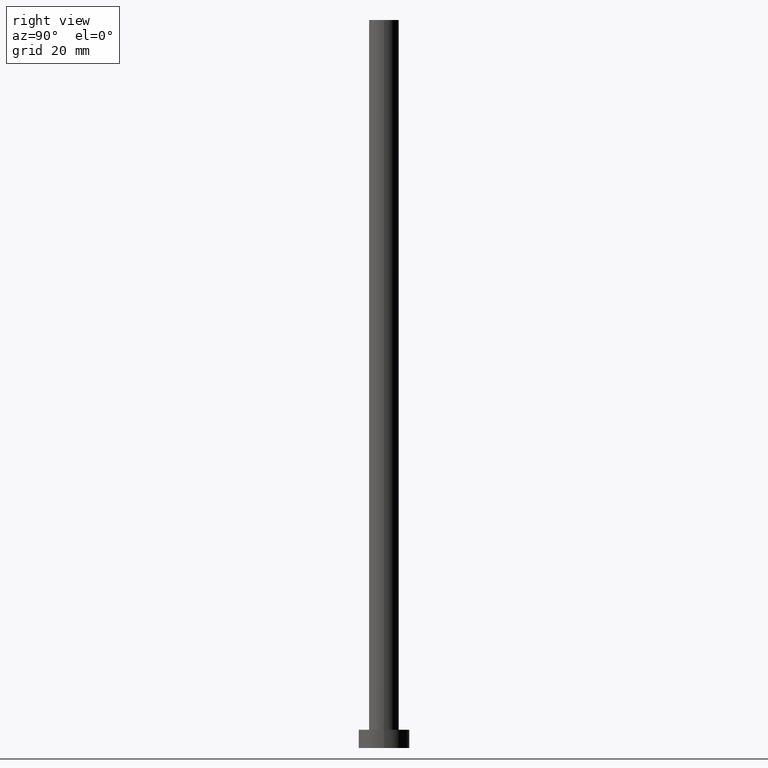
[diagram: clean part render]
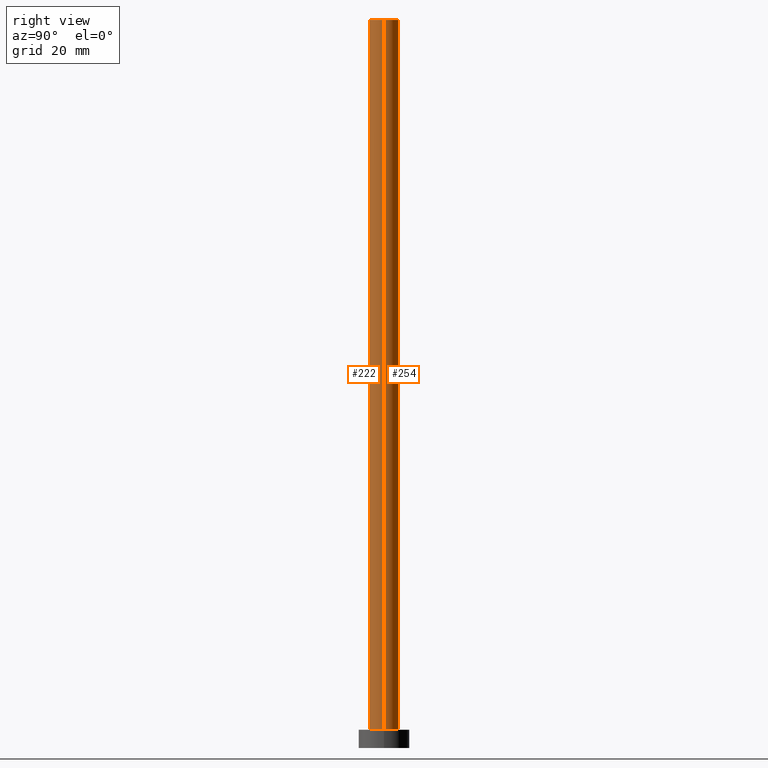
[diagram: same view with one multi-face feature highlighted, each face labeled with its STEP entity id]
A machine part, right view. The highlighted faces form ONE feature: a constant-radius fillet chain: 2 tangent blend faces with common blend radius 4.1 mm. The faces share edges in the B-rep.
Their STEP definitions:
[1] entity #254 (Cylinder):
#11 = DIRECTION ( 'NONE',  ( 1.000000000000000000, 0.000000000000000000, 0.000000000000000000 ) ) ;
#16 = DIRECTION ( 'NONE',  ( -0.000000000000000000, -0.000000000000000000, -1.000000000000000000 ) ) ;
#22 = EDGE_LOOP ( 'NONE', ( #23, #214, #55, #127 ) ) ;
#23 = ORIENTED_EDGE ( 'NONE', *, *, #185, .F. ) ;
#35 = VERTEX_POINT ( 'NONE', #96 ) ;
#46 = CARTESIAN_POINT ( 'NONE',  ( 4.099999999999999645, 5.021051876504147385E-16, 5.000000000000000000 ) ) ;
#47 = CIRCLE ( 'NONE', #182, 4.099999999999999645 ) ;
#55 = ORIENTED_EDGE ( 'NONE', *, *, #246, .T. ) ;
#63 = FACE_OUTER_BOUND ( 'NONE', #22, .T. ) ;
#70 = LINE ( 'NONE', #114, #88 ) ;
#74 = CARTESIAN_POINT ( 'NONE',  ( 0.000000000000000000, 0.000000000000000000, 200.0000000000000000 ) ) ;
#77 = CIRCLE ( 'NONE', #252, 4.099999999999999645 ) ;
#80 = CARTESIAN_POINT ( 'NONE',  ( 0.000000000000000000, 0.000000000000000000, 5.000000000000000000 ) ) ;
#88 = VECTOR ( 'NONE', #117, 1000.000000000000000 ) ;
#96 = CARTESIAN_POINT ( 'NONE',  ( -4.099999999999999645, 0.000000000000000000, 5.000000000000000000 ) ) ;
#103 = CARTESIAN_POINT ( 'NONE',  ( -4.099999999999999645, 0.000000000000000000, 200.0000000000000000 ) ) ;
#105 = CARTESIAN_POINT ( 'NONE',  ( 0.000000000000000000, 0.000000000000000000, 200.0000000000000000 ) ) ;
#106 = EDGE_CURVE ( 'NONE', #195, #35, #70, .T. ) ;
#114 = CARTESIAN_POINT ( 'NONE',  ( -4.099999999999999645, 0.000000000000000000, 200.0000000000000000 ) ) ;
#117 = DIRECTION ( 'NONE',  ( -0.000000000000000000, -0.000000000000000000, -1.000000000000000000 ) ) ;
#126 = CYLINDRICAL_SURFACE ( 'NONE', #131, 4.099999999999999645 ) ;
#127 = ORIENTED_EDGE ( 'NONE', *, *, #106, .F. ) ;
#131 = AXIS2_PLACEMENT_3D ( 'NONE', #105, #16, #167 ) ;
#137 = DIRECTION ( 'NONE',  ( 0.000000000000000000, 0.000000000000000000, 1.000000000000000000 ) ) ;
#166 = DIRECTION ( 'NONE',  ( 0.000000000000000000, 0.000000000000000000, 1.000000000000000000 ) ) ;
#167 = DIRECTION ( 'NONE',  ( -1.000000000000000000, 0.000000000000000000, 0.000000000000000000 ) ) ;
#180 = VECTOR ( 'NONE', #206, 1000.000000000000000 ) ;
#182 = AXIS2_PLACEMENT_3D ( 'NONE', #74, #137, #11 ) ;
#184 = CARTESIAN_POINT ( 'NONE',  ( 4.099999999999999645, 5.021051876504147385E-16, 200.0000000000000000 ) ) ;
#185 = EDGE_CURVE ( 'NONE', #244, #195, #47, .T. ) ;
#186 = CARTESIAN_POINT ( 'NONE',  ( 4.099999999999999645, 5.021051876504147385E-16, 200.0000000000000000 ) ) ;
#194 = EDGE_CURVE ( 'NONE', #244, #231, #203, .T. ) ;
#195 = VERTEX_POINT ( 'NONE', #103 ) ;
#203 = LINE ( 'NONE', #184, #180 ) ;
#206 = DIRECTION ( 'NONE',  ( -0.000000000000000000, -0.000000000000000000, -1.000000000000000000 ) ) ;
#214 = ORIENTED_EDGE ( 'NONE', *, *, #194, .T. ) ;
#227 = DIRECTION ( 'NONE',  ( 1.000000000000000000, 0.000000000000000000, 0.000000000000000000 ) ) ;
#231 = VERTEX_POINT ( 'NONE', #46 ) ;
#244 = VERTEX_POINT ( 'NONE', #186 ) ;
#246 = EDGE_CURVE ( 'NONE', #231, #35, #77, .T. ) ;
#252 = AXIS2_PLACEMENT_3D ( 'NONE', #80, #166, #227 ) ;
#254 = ADVANCED_FACE ( 'NONE', ( #63 ), #126, .T. ) ;
[2] entity #222 (Cylinder):
#7 = EDGE_CURVE ( 'NONE', #35, #231, #204, .T. ) ;
#9 = CARTESIAN_POINT ( 'NONE',  ( 0.000000000000000000, 0.000000000000000000, 5.000000000000000000 ) ) ;
#13 = AXIS2_PLACEMENT_3D ( 'NONE', #9, #156, #120 ) ;
#35 = VERTEX_POINT ( 'NONE', #96 ) ;
#36 = EDGE_CURVE ( 'NONE', #195, #244, #58, .T. ) ;
#46 = CARTESIAN_POINT ( 'NONE',  ( 4.099999999999999645, 5.021051876504147385E-16, 5.000000000000000000 ) ) ;
#56 = ORIENTED_EDGE ( 'NONE', *, *, #194, .F. ) ;
#58 = CIRCLE ( 'NONE', #225, 4.099999999999999645 ) ;
#59 = DIRECTION ( 'NONE',  ( -0.000000000000000000, -0.000000000000000000, -1.000000000000000000 ) ) ;
#70 = LINE ( 'NONE', #114, #88 ) ;
#88 = VECTOR ( 'NONE', #117, 1000.000000000000000 ) ;
#96 = CARTESIAN_POINT ( 'NONE',  ( -4.099999999999999645, 0.000000000000000000, 5.000000000000000000 ) ) ;
#103 = CARTESIAN_POINT ( 'NONE',  ( -4.099999999999999645, 0.000000000000000000, 200.0000000000000000 ) ) ;
#106 = EDGE_CURVE ( 'NONE', #195, #35, #70, .T. ) ;
#114 = CARTESIAN_POINT ( 'NONE',  ( -4.099999999999999645, 0.000000000000000000, 200.0000000000000000 ) ) ;
#116 = CYLINDRICAL_SURFACE ( 'NONE', #190, 4.099999999999999645 ) ;
#117 = DIRECTION ( 'NONE',  ( -0.000000000000000000, -0.000000000000000000, -1.000000000000000000 ) ) ;
#120 = DIRECTION ( 'NONE',  ( 1.000000000000000000, 0.000000000000000000, 0.000000000000000000 ) ) ;
#130 = EDGE_LOOP ( 'NONE', ( #56, #236, #134, #228 ) ) ;
#134 = ORIENTED_EDGE ( 'NONE', *, *, #106, .T. ) ;
#136 = DIRECTION ( 'NONE',  ( -1.000000000000000000, 0.000000000000000000, 0.000000000000000000 ) ) ;
#156 = DIRECTION ( 'NONE',  ( 0.000000000000000000, 0.000000000000000000, 1.000000000000000000 ) ) ;
#178 = CARTESIAN_POINT ( 'NONE',  ( 0.000000000000000000, 0.000000000000000000, 200.0000000000000000 ) ) ;
#180 = VECTOR ( 'NONE', #206, 1000.000000000000000 ) ;
#184 = CARTESIAN_POINT ( 'NONE',  ( 4.099999999999999645, 5.021051876504147385E-16, 200.0000000000000000 ) ) ;
#186 = CARTESIAN_POINT ( 'NONE',  ( 4.099999999999999645, 5.021051876504147385E-16, 200.0000000000000000 ) ) ;
#190 = AXIS2_PLACEMENT_3D ( 'NONE', #200, #59, #136 ) ;
#194 = EDGE_CURVE ( 'NONE', #244, #231, #203, .T. ) ;
#195 = VERTEX_POINT ( 'NONE', #103 ) ;
#200 = CARTESIAN_POINT ( 'NONE',  ( 0.000000000000000000, 0.000000000000000000, 200.0000000000000000 ) ) ;
#203 = LINE ( 'NONE', #184, #180 ) ;
#204 = CIRCLE ( 'NONE', #13, 4.099999999999999645 ) ;
#206 = DIRECTION ( 'NONE',  ( -0.000000000000000000, -0.000000000000000000, -1.000000000000000000 ) ) ;
#213 = DIRECTION ( 'NONE',  ( 1.000000000000000000, 0.000000000000000000, 0.000000000000000000 ) ) ;
#222 = ADVANCED_FACE ( 'NONE', ( #241 ), #116, .T. ) ;
#225 = AXIS2_PLACEMENT_3D ( 'NONE', #178, #232, #213 ) ;
#228 = ORIENTED_EDGE ( 'NONE', *, *, #7, .T. ) ;
#231 = VERTEX_POINT ( 'NONE', #46 ) ;
#232 = DIRECTION ( 'NONE',  ( 0.000000000000000000, 0.000000000000000000, 1.000000000000000000 ) ) ;
#236 = ORIENTED_EDGE ( 'NONE', *, *, #36, .F. ) ;
#241 = FACE_OUTER_BOUND ( 'NONE', #130, .T. ) ;
#244 = VERTEX_POINT ( 'NONE', #186 ) ;